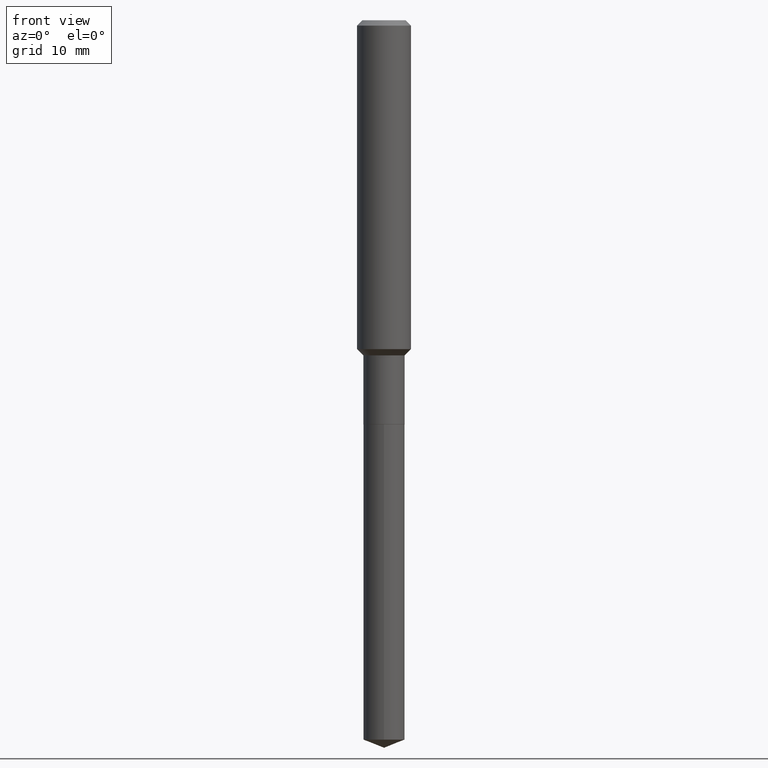
[diagram: clean part render]
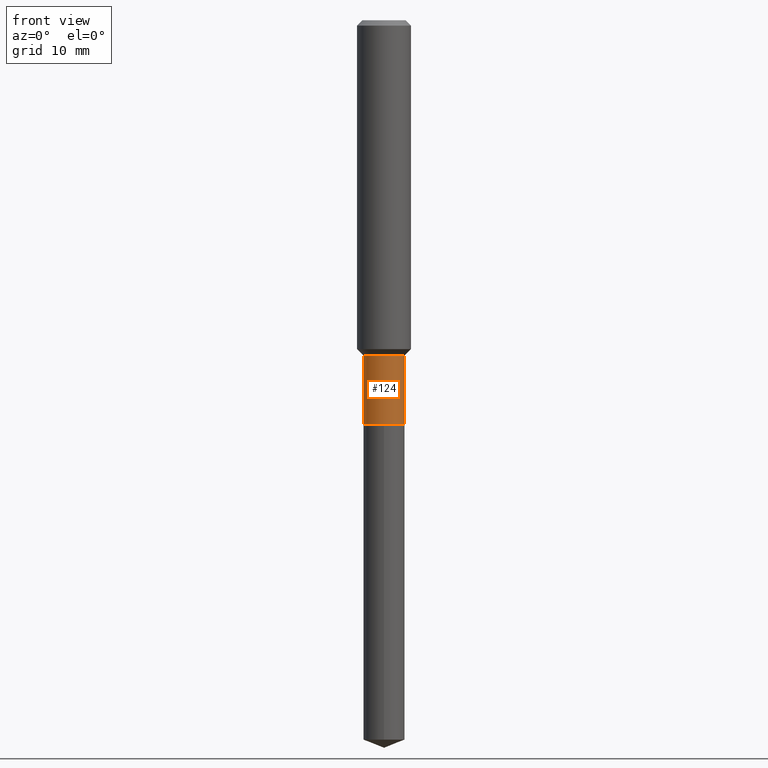
[diagram: same view with one face highlighted and labeled with its STEP entity id]
A machine part, front view. The second image highlights one B-rep face of the part: STEP entity #124.
In plain terms, the highlighted cylindrical surface (edge-blend (fillet) strip) has radius 2.3 mm, axis along (-0, 0, 1).
Its self-contained STEP definition (entity closure, byte-faithful):
#25 = LINE ( 'NONE', #399, #220 ) ;
#35 = CARTESIAN_POINT ( 'NONE',  ( 0.000000000000000000, 0.000000000000000000, 0.000000000000000000 ) ) ;
#63 = DIRECTION ( 'NONE',  ( -2.445468806185136597E-29, 3.491481338843145583E-15, 1.000000000000000000 ) ) ;
#70 = AXIS2_PLACEMENT_3D ( 'NONE', #327, #63, #184 ) ;
#76 = EDGE_CURVE ( 'NONE', #386, #318, #25, .T. ) ;
#80 = EDGE_CURVE ( 'NONE', #138, #386, #485, .T. ) ;
#83 = DIRECTION ( 'NONE',  ( -2.445468806185136597E-29, 3.491481338843145583E-15, 1.000000000000000000 ) ) ;
#114 = CIRCLE ( 'NONE', #487, 0.09054999999999997773 ) ;
#117 = EDGE_CURVE ( 'NONE', #138, #320, #139, .T. ) ;
#124 = ADVANCED_FACE ( 'NONE', ( #368 ), #293, .T. ) ;
#130 = ORIENTED_EDGE ( 'NONE', *, *, #117, .F. ) ;
#135 = CARTESIAN_POINT ( 'NONE',  ( 0.09055000000000000548, -6.816419017823473414E-15, -1.771200000000000552 ) ) ;
#138 = VERTEX_POINT ( 'NONE', #291 ) ;
#139 = LINE ( 'NONE', #373, #261 ) ;
#167 = CARTESIAN_POINT ( 'NONE',  ( 0.09054999999999997773, -5.760944209091188969E-15, -1.468900000000000317 ) ) ;
#181 = ORIENTED_EDGE ( 'NONE', *, *, #80, .T. ) ;
#184 = DIRECTION ( 'NONE',  ( 1.000000000000000000, -6.982962677686266711E-15, 0.000000000000000000 ) ) ;
#185 = DIRECTION ( 'NONE',  ( -2.445468806185136597E-29, 3.491481338843145583E-15, 1.000000000000000000 ) ) ;
#200 = ORIENTED_EDGE ( 'NONE', *, *, #76, .T. ) ;
#208 = CARTESIAN_POINT ( 'NONE',  ( -0.09054999999999997773, -5.012977895762068866E-15, -1.468900000000000317 ) ) ;
#220 = VECTOR ( 'NONE', #298, 39.37007874015748143 ) ;
#234 = DIRECTION ( 'NONE',  ( 1.000000000000000000, -6.982962677686268288E-15, 0.000000000000000000 ) ) ;
#257 = DIRECTION ( 'NONE',  ( 1.000000000000000000, -6.982962677686266711E-15, 4.876176775795935793E-29 ) ) ;
#261 = VECTOR ( 'NONE', #407, 39.37007874015748143 ) ;
#268 = EDGE_CURVE ( 'NONE', #320, #318, #114, .T. ) ;
#291 = CARTESIAN_POINT ( 'NONE',  ( -0.09055000000000000548, -5.012977895762068866E-15, -1.771200000000000552 ) ) ;
#293 = CYLINDRICAL_SURFACE ( 'NONE', #408, 0.09054999999999999161 ) ;
#298 = DIRECTION ( 'NONE',  ( -2.445468806185136877E-29, 3.491481338843145188E-15, 1.000000000000000000 ) ) ;
#302 = CARTESIAN_POINT ( 'NONE',  ( 3.592149129405347553E-29, -5.128636938626697499E-15, -1.468900000000000317 ) ) ;
#318 = VERTEX_POINT ( 'NONE', #167 ) ;
#320 = VERTEX_POINT ( 'NONE', #208 ) ;
#327 = CARTESIAN_POINT ( 'NONE',  ( 4.331414349515115307E-29, -6.184111747358981944E-15, -1.771200000000000552 ) ) ;
#368 = FACE_OUTER_BOUND ( 'NONE', #470, .T. ) ;
#373 = CARTESIAN_POINT ( 'NONE',  ( -0.09054999999999999161, 6.433964472307706587E-16, -4.454095724225816518E-30 ) ) ;
#386 = VERTEX_POINT ( 'NONE', #135 ) ;
#399 = CARTESIAN_POINT ( 'NONE',  ( 0.09054999999999999161, -6.323072704644913710E-16, 4.415378070483219406E-30 ) ) ;
#402 = ORIENTED_EDGE ( 'NONE', *, *, #268, .F. ) ;
#407 = DIRECTION ( 'NONE',  ( -2.445468806185136877E-29, 3.491481338843145188E-15, 1.000000000000000000 ) ) ;
#408 = AXIS2_PLACEMENT_3D ( 'NONE', #35, #185, #257 ) ;
#470 = EDGE_LOOP ( 'NONE', ( #130, #181, #200, #402 ) ) ;
#485 = CIRCLE ( 'NONE', #70, 0.09055000000000000548 ) ;
#487 = AXIS2_PLACEMENT_3D ( 'NONE', #302, #83, #234 ) ;